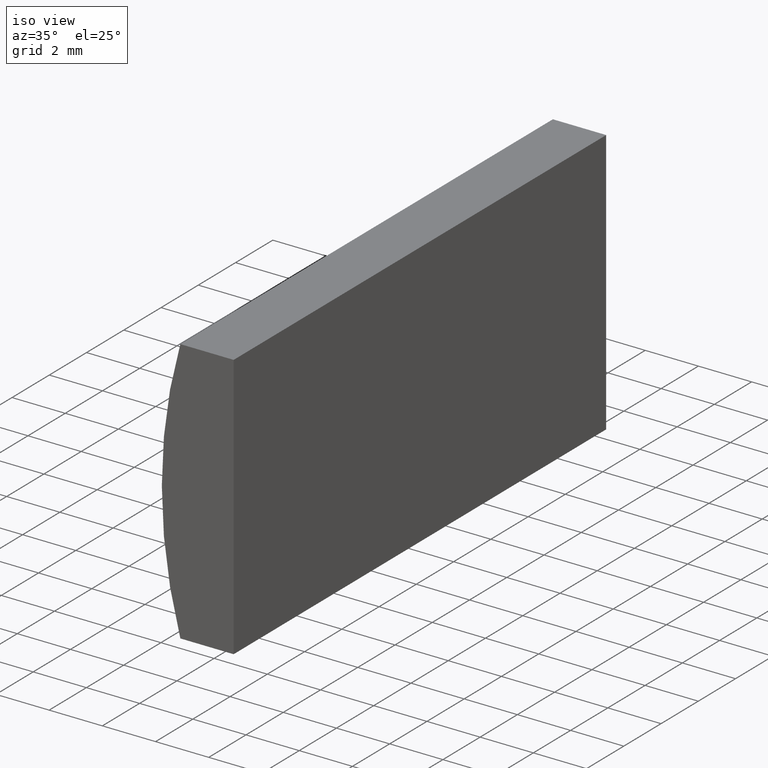
[diagram: clean part render]
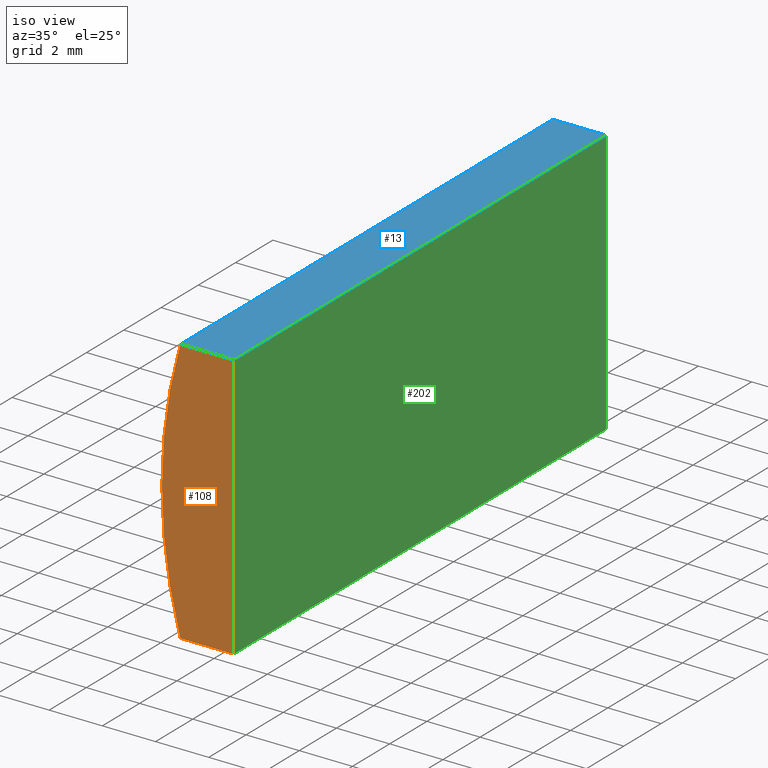
[diagram: same view with three faces highlighted in distinct colors, each labeled with its STEP entity id]
A machine part, iso view with three faces highlighted in distinct colors.
Their STEP definitions:

[orange] entity #108 — the highlighted planar face has unit normal (0, 1, 0).
#3 = CARTESIAN_POINT ( 'NONE',  ( -13.26927863628862900, 0.0000000000000000000, -5.000000000000000000 ) ) ;
#21 = CARTESIAN_POINT ( 'NONE',  ( -11.26479566514873400, 0.0000000000000000000, -5.000000000000001800 ) ) ;
#25 = ORIENTED_EDGE ( 'NONE', *, *, #69, .F. ) ;
#35 = CARTESIAN_POINT ( 'NONE',  ( -11.26479566514873000, 0.0000000000000000000, 5.000000000000000000 ) ) ;
#45 = CARTESIAN_POINT ( 'NONE',  ( -13.26927863628862900, 0.0000000000000000000, -5.000000000000000000 ) ) ;
#49 = DIRECTION ( 'NONE',  ( 1.000000000000000000, 0.0000000000000000000, 0.0000000000000000000 ) ) ;
#52 = LINE ( 'NONE', #45, #131 ) ;
#55 = ORIENTED_EDGE ( 'NONE', *, *, #116, .F. ) ;
#63 = DIRECTION ( 'NONE',  ( 0.0000000000000000000, -0.0000000000000000000, 1.000000000000000000 ) ) ;
#64 = DIRECTION ( 'NONE',  ( -3.469446951953613700E-016, -0.0000000000000000000, -1.000000000000000000 ) ) ;
#66 = VECTOR ( 'NONE', #49, 1000.000000000000000 ) ;
#69 = EDGE_CURVE ( 'NONE', #201, #153, #184, .T. ) ;
#73 = EDGE_LOOP ( 'NONE', ( #95, #172, #55, #25 ) ) ;
#79 = DIRECTION ( 'NONE',  ( 0.0000000000000000000, 1.000000000000000000, 0.0000000000000000000 ) ) ;
#81 = DIRECTION ( 'NONE',  ( 0.0000000000000000000, 1.000000000000000000, 0.0000000000000000000 ) ) ;
#85 = AXIS2_PLACEMENT_3D ( 'NONE', #179, #79, #63 ) ;
#86 = VERTEX_POINT ( 'NONE', #183 ) ;
#95 = ORIENTED_EDGE ( 'NONE', *, *, #196, .F. ) ;
#98 = DIRECTION ( 'NONE',  ( 0.0000000000000000000, 0.0000000000000000000, 1.000000000000000000 ) ) ;
#99 = CIRCLE ( 'NONE', #138, 18.32000000000000400 ) ;
#108 = ADVANCED_FACE ( 'NONE', ( #110 ), #186, .F. ) ;
#110 = FACE_OUTER_BOUND ( 'NONE', #73, .T. ) ;
#111 = VECTOR ( 'NONE', #64, 1000.000000000000000 ) ;
#116 = EDGE_CURVE ( 'NONE', #153, #86, #192, .T. ) ;
#126 = CARTESIAN_POINT ( 'NONE',  ( -13.26927863628862900, 0.0000000000000000000, 5.000000000000000000 ) ) ;
#129 = VERTEX_POINT ( 'NONE', #3 ) ;
#131 = VECTOR ( 'NONE', #141, 1000.000000000000000 ) ;
#138 = AXIS2_PLACEMENT_3D ( 'NONE', #188, #81, #98 ) ;
#141 = DIRECTION ( 'NONE',  ( -1.000000000000000000, -0.0000000000000000000, 8.654219072713387300E-016 ) ) ;
#153 = VERTEX_POINT ( 'NONE', #35 ) ;
#172 = ORIENTED_EDGE ( 'NONE', *, *, #203, .F. ) ;
#179 = CARTESIAN_POINT ( 'NONE',  ( 4.355204334851265500, 0.0000000000000000000, 4.286263797015675000E-017 ) ) ;
#183 = CARTESIAN_POINT ( 'NONE',  ( -11.26479566514873400, 0.0000000000000000000, -5.000000000000001800 ) ) ;
#184 = LINE ( 'NONE', #200, #66 ) ;
#186 = PLANE ( 'NONE',  #85 ) ;
#188 = CARTESIAN_POINT ( 'NONE',  ( 4.355204334851265500, 0.0000000000000000000, 4.286263797015675000E-017 ) ) ;
#192 = LINE ( 'NONE', #21, #111 ) ;
#196 = EDGE_CURVE ( 'NONE', #129, #201, #99, .T. ) ;
#200 = CARTESIAN_POINT ( 'NONE',  ( -13.26927863628862900, 0.0000000000000000000, 5.000000000000000000 ) ) ;
#201 = VERTEX_POINT ( 'NONE', #126 ) ;
#203 = EDGE_CURVE ( 'NONE', #86, #129, #52, .T. ) ;

[blue] entity #13 — the highlighted planar face has unit normal (0, 0, -1).
#8 = AXIS2_PLACEMENT_3D ( 'NONE', #92, #75, #166 ) ;
#12 = EDGE_LOOP ( 'NONE', ( #171, #54, #145, #80 ) ) ;
#13 = ADVANCED_FACE ( 'NONE', ( #117 ), #181, .F. ) ;
#20 = EDGE_CURVE ( 'NONE', #156, #201, #103, .T. ) ;
#28 = VERTEX_POINT ( 'NONE', #121 ) ;
#33 = LINE ( 'NONE', #159, #56 ) ;
#35 = CARTESIAN_POINT ( 'NONE',  ( -11.26479566514873000, 0.0000000000000000000, 5.000000000000000000 ) ) ;
#38 = DIRECTION ( 'NONE',  ( 1.000000000000000000, 0.0000000000000000000, 0.0000000000000000000 ) ) ;
#43 = EDGE_CURVE ( 'NONE', #28, #153, #59, .T. ) ;
#47 = CARTESIAN_POINT ( 'NONE',  ( -13.26927863628862900, 20.00000000000000000, 5.000000000000000000 ) ) ;
#49 = DIRECTION ( 'NONE',  ( 1.000000000000000000, 0.0000000000000000000, 0.0000000000000000000 ) ) ;
#54 = ORIENTED_EDGE ( 'NONE', *, *, #43, .F. ) ;
#56 = VECTOR ( 'NONE', #38, 1000.000000000000000 ) ;
#59 = LINE ( 'NONE', #182, #107 ) ;
#62 = VECTOR ( 'NONE', #109, 1000.000000000000000 ) ;
#66 = VECTOR ( 'NONE', #49, 1000.000000000000000 ) ;
#69 = EDGE_CURVE ( 'NONE', #201, #153, #184, .T. ) ;
#75 = DIRECTION ( 'NONE',  ( 0.0000000000000000000, 0.0000000000000000000, -1.000000000000000000 ) ) ;
#77 = DIRECTION ( 'NONE',  ( -0.0000000000000000000, -1.000000000000000000, -0.0000000000000000000 ) ) ;
#80 = ORIENTED_EDGE ( 'NONE', *, *, #20, .T. ) ;
#92 = CARTESIAN_POINT ( 'NONE',  ( -13.26927863628862900, 20.00000000000000000, 5.000000000000000000 ) ) ;
#103 = LINE ( 'NONE', #47, #62 ) ;
#107 = VECTOR ( 'NONE', #77, 1000.000000000000000 ) ;
#109 = DIRECTION ( 'NONE',  ( -0.0000000000000000000, -1.000000000000000000, -0.0000000000000000000 ) ) ;
#117 = FACE_OUTER_BOUND ( 'NONE', #12, .T. ) ;
#121 = CARTESIAN_POINT ( 'NONE',  ( -11.26479566514873000, 20.00000000000000000, 5.000000000000000000 ) ) ;
#126 = CARTESIAN_POINT ( 'NONE',  ( -13.26927863628862900, 0.0000000000000000000, 5.000000000000000000 ) ) ;
#145 = ORIENTED_EDGE ( 'NONE', *, *, #177, .F. ) ;
#153 = VERTEX_POINT ( 'NONE', #35 ) ;
#156 = VERTEX_POINT ( 'NONE', #175 ) ;
#159 = CARTESIAN_POINT ( 'NONE',  ( -13.26927863628862900, 20.00000000000000000, 5.000000000000000000 ) ) ;
#166 = DIRECTION ( 'NONE',  ( -1.000000000000000000, 0.0000000000000000000, -0.0000000000000000000 ) ) ;
#171 = ORIENTED_EDGE ( 'NONE', *, *, #69, .T. ) ;
#175 = CARTESIAN_POINT ( 'NONE',  ( -13.26927863628862900, 20.00000000000000000, 5.000000000000000000 ) ) ;
#177 = EDGE_CURVE ( 'NONE', #156, #28, #33, .T. ) ;
#181 = PLANE ( 'NONE',  #8 ) ;
#182 = CARTESIAN_POINT ( 'NONE',  ( -11.26479566514873000, 20.00000000000000000, 5.000000000000000000 ) ) ;
#184 = LINE ( 'NONE', #200, #66 ) ;
#200 = CARTESIAN_POINT ( 'NONE',  ( -13.26927863628862900, 0.0000000000000000000, 5.000000000000000000 ) ) ;
#201 = VERTEX_POINT ( 'NONE', #126 ) ;

[green] entity #202 — the highlighted planar face has unit normal (-1, 0, 0).
#16 = EDGE_LOOP ( 'NONE', ( #44, #122, #119, #130 ) ) ;
#17 = VERTEX_POINT ( 'NONE', #136 ) ;
#21 = CARTESIAN_POINT ( 'NONE',  ( -11.26479566514873400, 0.0000000000000000000, -5.000000000000001800 ) ) ;
#22 = DIRECTION ( 'NONE',  ( -1.000000000000000000, 0.0000000000000000000, 3.469446951953613700E-016 ) ) ;
#28 = VERTEX_POINT ( 'NONE', #121 ) ;
#31 = CARTESIAN_POINT ( 'NONE',  ( -11.26479566514873400, 20.00000000000000000, -5.000000000000001800 ) ) ;
#32 = LINE ( 'NONE', #31, #140 ) ;
#34 = DIRECTION ( 'NONE',  ( -0.0000000000000000000, -1.000000000000000000, -0.0000000000000000000 ) ) ;
#35 = CARTESIAN_POINT ( 'NONE',  ( -11.26479566514873000, 0.0000000000000000000, 5.000000000000000000 ) ) ;
#40 = EDGE_CURVE ( 'NONE', #28, #17, #178, .T. ) ;
#43 = EDGE_CURVE ( 'NONE', #28, #153, #59, .T. ) ;
#44 = ORIENTED_EDGE ( 'NONE', *, *, #116, .T. ) ;
#51 = AXIS2_PLACEMENT_3D ( 'NONE', #158, #22, #142 ) ;
#59 = LINE ( 'NONE', #182, #107 ) ;
#60 = DIRECTION ( 'NONE',  ( -3.469446951953613700E-016, -0.0000000000000000000, -1.000000000000000000 ) ) ;
#64 = DIRECTION ( 'NONE',  ( -3.469446951953613700E-016, -0.0000000000000000000, -1.000000000000000000 ) ) ;
#77 = DIRECTION ( 'NONE',  ( -0.0000000000000000000, -1.000000000000000000, -0.0000000000000000000 ) ) ;
#86 = VERTEX_POINT ( 'NONE', #183 ) ;
#91 = FACE_OUTER_BOUND ( 'NONE', #16, .T. ) ;
#96 = EDGE_CURVE ( 'NONE', #17, #86, #32, .T. ) ;
#107 = VECTOR ( 'NONE', #77, 1000.000000000000000 ) ;
#111 = VECTOR ( 'NONE', #64, 1000.000000000000000 ) ;
#116 = EDGE_CURVE ( 'NONE', #153, #86, #192, .T. ) ;
#119 = ORIENTED_EDGE ( 'NONE', *, *, #40, .F. ) ;
#121 = CARTESIAN_POINT ( 'NONE',  ( -11.26479566514873000, 20.00000000000000000, 5.000000000000000000 ) ) ;
#122 = ORIENTED_EDGE ( 'NONE', *, *, #96, .F. ) ;
#127 = PLANE ( 'NONE',  #51 ) ;
#130 = ORIENTED_EDGE ( 'NONE', *, *, #43, .T. ) ;
#136 = CARTESIAN_POINT ( 'NONE',  ( -11.26479566514873400, 20.00000000000000000, -5.000000000000001800 ) ) ;
#140 = VECTOR ( 'NONE', #34, 1000.000000000000000 ) ;
#142 = DIRECTION ( 'NONE',  ( 3.469446951953613700E-016, 0.0000000000000000000, 1.000000000000000000 ) ) ;
#144 = VECTOR ( 'NONE', #60, 1000.000000000000000 ) ;
#153 = VERTEX_POINT ( 'NONE', #35 ) ;
#158 = CARTESIAN_POINT ( 'NONE',  ( -11.26479566514873400, 20.00000000000000000, -5.000000000000001800 ) ) ;
#167 = CARTESIAN_POINT ( 'NONE',  ( -11.26479566514873400, 20.00000000000000000, -5.000000000000001800 ) ) ;
#178 = LINE ( 'NONE', #167, #144 ) ;
#182 = CARTESIAN_POINT ( 'NONE',  ( -11.26479566514873000, 20.00000000000000000, 5.000000000000000000 ) ) ;
#183 = CARTESIAN_POINT ( 'NONE',  ( -11.26479566514873400, 0.0000000000000000000, -5.000000000000001800 ) ) ;
#192 = LINE ( 'NONE', #21, #111 ) ;
#202 = ADVANCED_FACE ( 'NONE', ( #91 ), #127, .F. ) ;